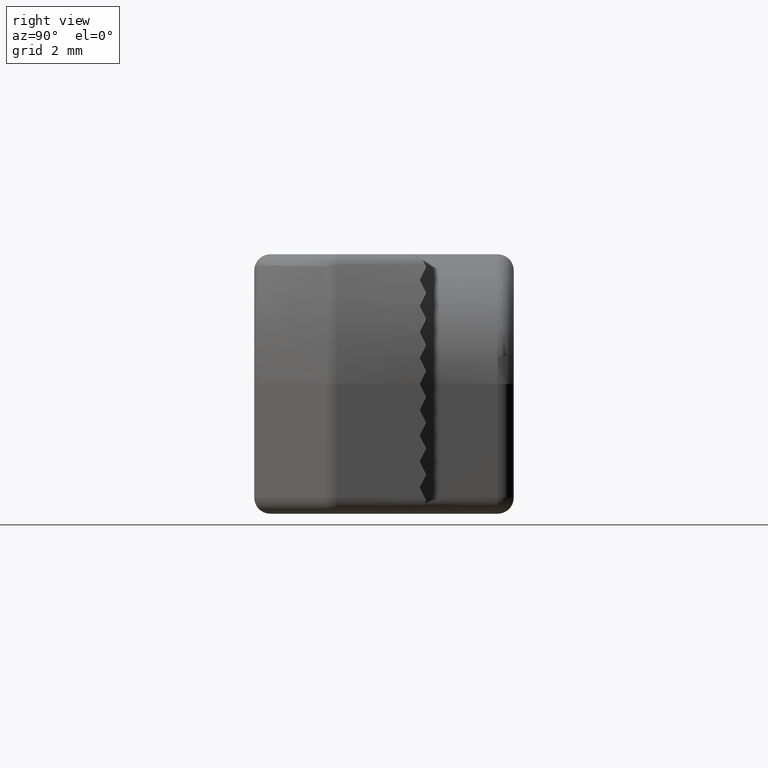
[diagram: clean part render]
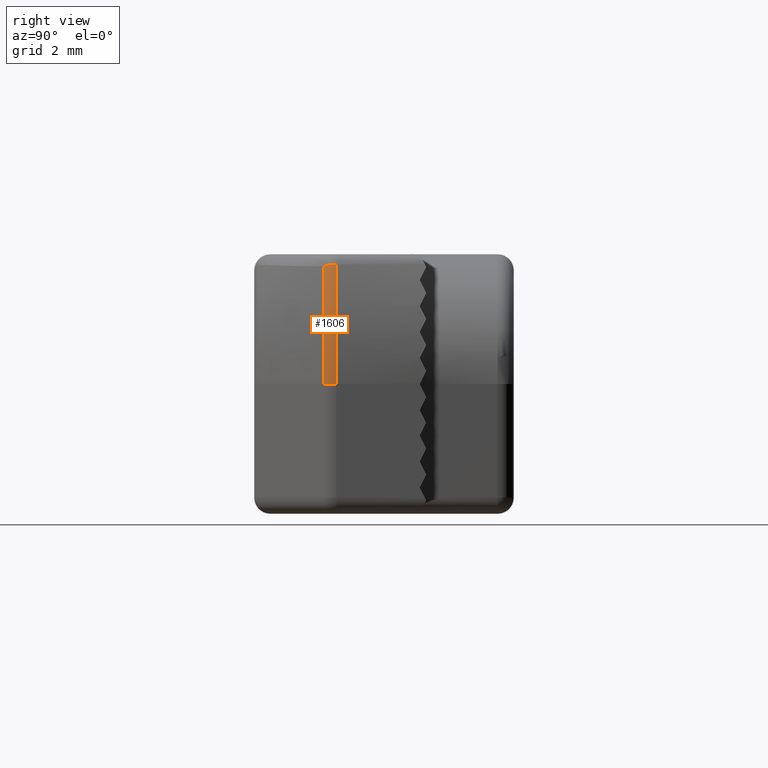
[diagram: same view with one face highlighted and labeled with its STEP entity id]
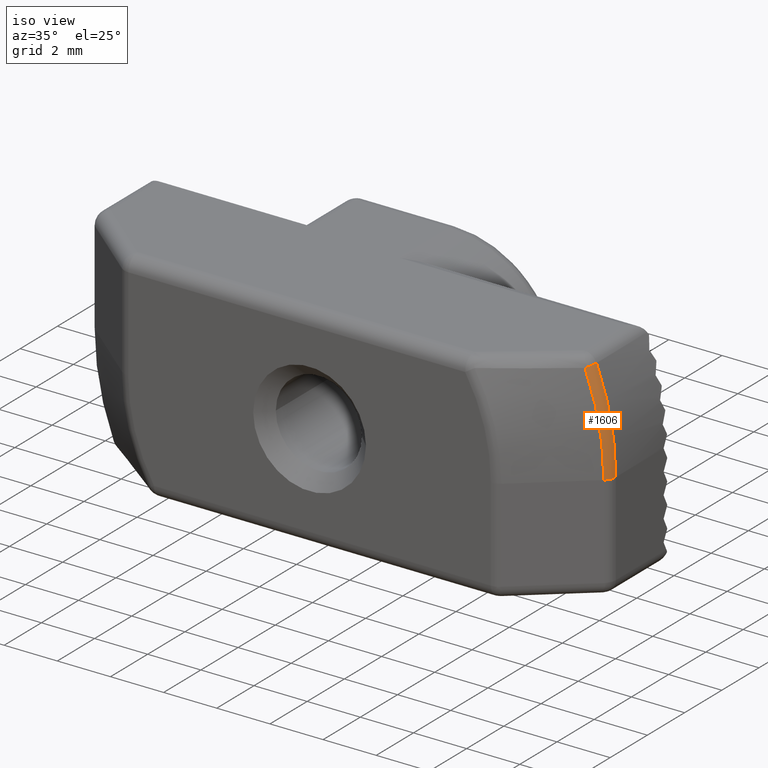
[diagram: same view with one face highlighted and labeled with its STEP entity id]
A machine part, right view. The second image highlights one B-rep face of the part: STEP entity #1606.
A second angle (iso view) of the same face is appended — the face is thin or edge-on in the first view.
In plain terms, the highlighted toroidal blend (fillet) surface has major radius 9.25 mm and minor (blend) radius 0.5 mm.
Its self-contained STEP definition (entity closure, byte-faithful):
#21=TOROIDAL_SURFACE('',#1773,9.25,0.5);
#469=FACE_OUTER_BOUND('',#573,.T.);
#573=EDGE_LOOP('',(#1259,#1260,#1261,#1262));
#680=CIRCLE('',#1767,0.500000000000001);
#683=CIRCLE('',#1772,0.5);
#684=CIRCLE('',#1774,9.75);
#685=CIRCLE('',#1775,9.57077760024555);
#771=VERTEX_POINT('',#2676);
#772=VERTEX_POINT('',#2678);
#774=VERTEX_POINT('',#2710);
#775=VERTEX_POINT('',#2711);
#953=EDGE_CURVE('',#771,#772,#680,.F.);
#957=EDGE_CURVE('',#774,#775,#683,.T.);
#960=EDGE_CURVE('',#774,#771,#684,.T.);
#961=EDGE_CURVE('',#772,#775,#685,.T.);
#1259=ORIENTED_EDGE('',*,*,#957,.F.);
#1260=ORIENTED_EDGE('',*,*,#960,.T.);
#1261=ORIENTED_EDGE('',*,*,#953,.T.);
#1262=ORIENTED_EDGE('',*,*,#961,.T.);
#1606=ADVANCED_FACE('',(#469),#21,.T.);
#1767=AXIS2_PLACEMENT_3D('',#2680,#2118,#2119);
#1772=AXIS2_PLACEMENT_3D('',#2712,#2128,#2129);
#1773=AXIS2_PLACEMENT_3D('',#2715,#2132,#2133);
#1774=AXIS2_PLACEMENT_3D('',#2716,#2134,#2135);
#1775=AXIS2_PLACEMENT_3D('',#2717,#2136,#2137);
#2118=DIRECTION('center_axis',(-0.378378378378379,-2.54415689797315E-15,
0.925651015651011));
#2119=DIRECTION('ref_axis',(0.925651015651011,0.,0.378378378378379));
#2128=DIRECTION('center_axis',(0.,0.,-1.));
#2129=DIRECTION('ref_axis',(1.,0.,0.));
#2132=DIRECTION('center_axis',(0.,-1.,0.));
#2133=DIRECTION('ref_axis',(0.,0.,-1.));
#2134=DIRECTION('center_axis',(0.,-1.,0.));
#2135=DIRECTION('ref_axis',(0.977744909889507,0.,0.209797262101202));
#2136=DIRECTION('center_axis',(5.6709859768423E-17,1.,1.21683817458102E-17));
#2137=DIRECTION('ref_axis',(0.977744909889507,-5.80006699035965E-17,0.209797262101202));
#2676=CARTESIAN_POINT('',(9.02509740259736,-2.76635666290024,3.68918918918919));
#2678=CARTESIAN_POINT('',(8.85920000623724,-3.14989509797645,3.62137530820102));
#2680=CARTESIAN_POINT('Origin',(8.56227189477185,-2.76635666290024,3.5));
#2710=CARTESIAN_POINT('',(9.75,-2.76635666290024,0.));
#2711=CARTESIAN_POINT('',(9.57077760024555,-3.14989509797645,0.));
#2712=CARTESIAN_POINT('Origin',(9.25,-2.76635666290024,0.));
#2715=CARTESIAN_POINT('Origin',(0.,-2.76635666290024,0.));
#2716=CARTESIAN_POINT('Origin',(0.,-2.76635666290024,0.));
#2717=CARTESIAN_POINT('Origin',(5.55111512312578E-16,-3.14989509797645,
-8.32667268468867E-16));